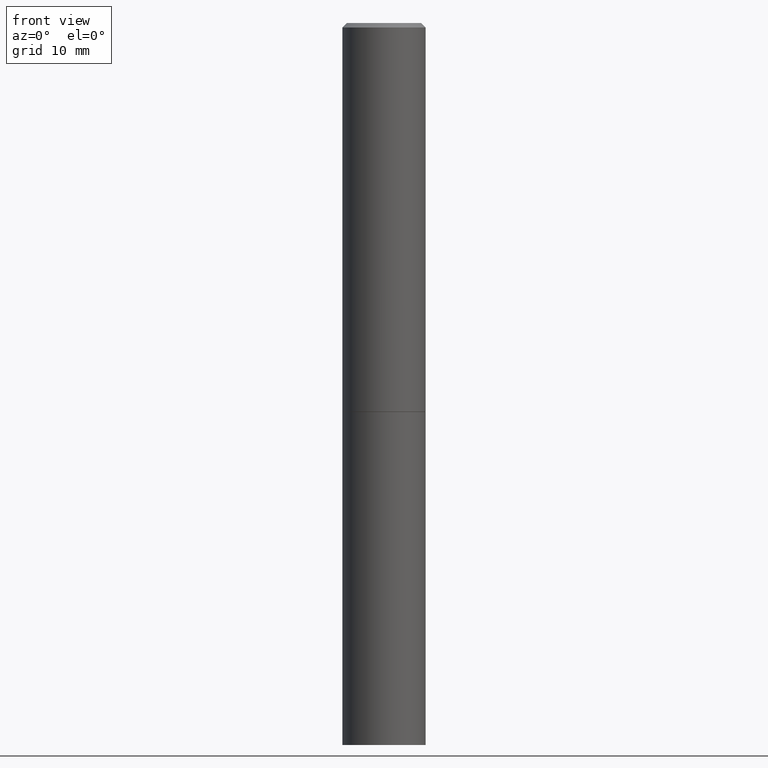
[diagram: clean part render]
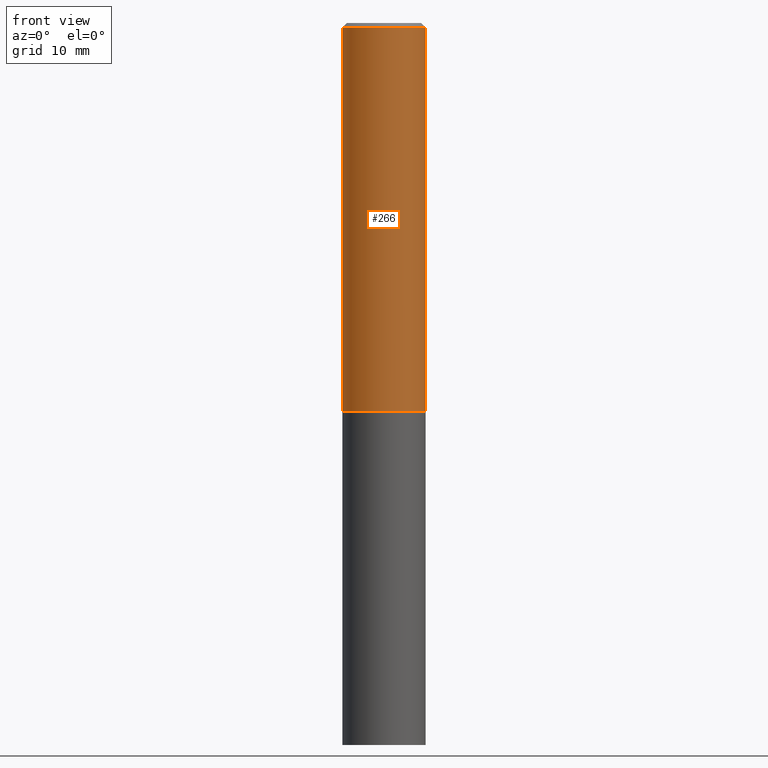
[diagram: same view with one face highlighted and labeled with its STEP entity id]
A machine part, front view. The second image highlights one B-rep face of the part: STEP entity #266.
In plain terms, the highlighted cylindrical surface (partial cylindrical patch) has radius 4.7625 mm, axis along (-0, 0, 1).
Its self-contained STEP definition (entity closure, byte-faithful):
#13 = AXIS2_PLACEMENT_3D ( 'NONE', #255, #120, #229 ) ;
#28 = DIRECTION ( 'NONE',  ( -2.445468806185136877E-29, 3.491481338843145188E-15, 1.000000000000000000 ) ) ;
#34 = EDGE_LOOP ( 'NONE', ( #352, #106, #330, #219 ) ) ;
#35 = CIRCLE ( 'NONE', #48, 0.1875000000000000555 ) ;
#48 = AXIS2_PLACEMENT_3D ( 'NONE', #117, #286, #55 ) ;
#55 = DIRECTION ( 'NONE',  ( 1.000000000000000000, -6.982962677686265922E-15, 0.000000000000000000 ) ) ;
#60 = DIRECTION ( 'NONE',  ( 1.000000000000000000, -6.982962677686266711E-15, 0.000000000000000000 ) ) ;
#100 = CARTESIAN_POINT ( 'NONE',  ( -0.1875000000000000278, -1.755947614656572858E-15, -1.749000000000000110 ) ) ;
#106 = ORIENTED_EDGE ( 'NONE', *, *, #253, .T. ) ;
#107 = VECTOR ( 'NONE', #240, 39.37007874015748143 ) ;
#111 = CARTESIAN_POINT ( 'NONE',  ( -0.1874999999999998335, 1.239475875289310724E-15, -0.02000000000000002123 ) ) ;
#115 = EDGE_CURVE ( 'NONE', #296, #244, #172, .T. ) ;
#117 = CARTESIAN_POINT ( 'NONE',  ( 4.277124942017804562E-29, -6.106600861636661664E-15, -1.749000000000000110 ) ) ;
#120 = DIRECTION ( 'NONE',  ( -2.445468806185136597E-29, 3.491481338843145583E-15, 1.000000000000000000 ) ) ;
#145 = CYLINDRICAL_SURFACE ( 'NONE', #13, 0.1874999999999999445 ) ;
#148 = AXIS2_PLACEMENT_3D ( 'NONE', #328, #174, #60 ) ;
#153 = CIRCLE ( 'NONE', #148, 0.1874999999999998335 ) ;
#172 = LINE ( 'NONE', #320, #107 ) ;
#174 = DIRECTION ( 'NONE',  ( -2.445468806185136597E-29, 3.491481338843145583E-15, 1.000000000000000000 ) ) ;
#175 = CARTESIAN_POINT ( 'NONE',  ( 0.1874999999999999445, -1.309305502066174614E-15, 9.142831454617376809E-30 ) ) ;
#195 = CARTESIAN_POINT ( 'NONE',  ( 0.1874999999999998335, -1.356173001359024283E-15, -0.02000000000000002123 ) ) ;
#199 = CARTESIAN_POINT ( 'NONE',  ( 0.1875000000000000555, -7.415906363702837461E-15, -1.749000000000000110 ) ) ;
#218 = EDGE_CURVE ( 'NONE', #244, #239, #153, .T. ) ;
#219 = ORIENTED_EDGE ( 'NONE', *, *, #218, .F. ) ;
#227 = FACE_OUTER_BOUND ( 'NONE', #34, .T. ) ;
#229 = DIRECTION ( 'NONE',  ( 1.000000000000000000, -6.982962677686266711E-15, 4.876176775795935793E-29 ) ) ;
#233 = VERTEX_POINT ( 'NONE', #199 ) ;
#239 = VERTEX_POINT ( 'NONE', #195 ) ;
#240 = DIRECTION ( 'NONE',  ( -2.445468806185136877E-29, 3.491481338843145188E-15, 1.000000000000000000 ) ) ;
#244 = VERTEX_POINT ( 'NONE', #111 ) ;
#253 = EDGE_CURVE ( 'NONE', #296, #233, #35, .T. ) ;
#255 = CARTESIAN_POINT ( 'NONE',  ( 0.000000000000000000, 0.000000000000000000, 0.000000000000000000 ) ) ;
#256 = EDGE_CURVE ( 'NONE', #233, #239, #293, .T. ) ;
#266 = ADVANCED_FACE ( 'NONE', ( #227 ), #145, .T. ) ;
#286 = DIRECTION ( 'NONE',  ( -2.445468806185136597E-29, 3.491481338843145583E-15, 1.000000000000000000 ) ) ;
#293 = LINE ( 'NONE', #175, #333 ) ;
#296 = VERTEX_POINT ( 'NONE', #100 ) ;
#320 = CARTESIAN_POINT ( 'NONE',  ( -0.1874999999999999445, 1.332267629550187454E-15, -9.223003294227945188E-30 ) ) ;
#328 = CARTESIAN_POINT ( 'NONE',  ( 4.890937612370278413E-31, -6.982962677686297772E-17, -0.02000000000000002123 ) ) ;
#330 = ORIENTED_EDGE ( 'NONE', *, *, #256, .T. ) ;
#333 = VECTOR ( 'NONE', #28, 39.37007874015748143 ) ;
#352 = ORIENTED_EDGE ( 'NONE', *, *, #115, .F. ) ;